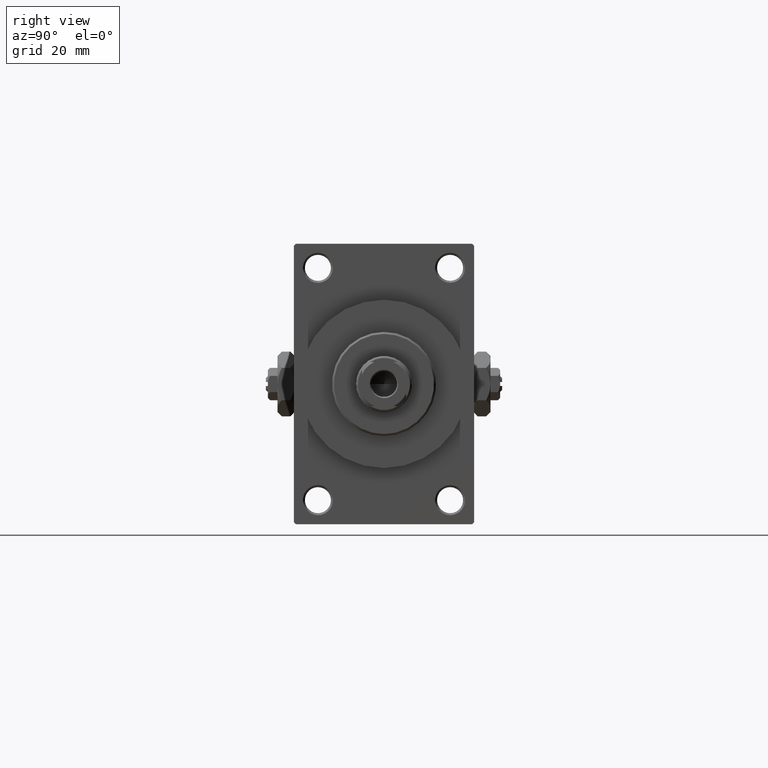
[diagram: clean part render]
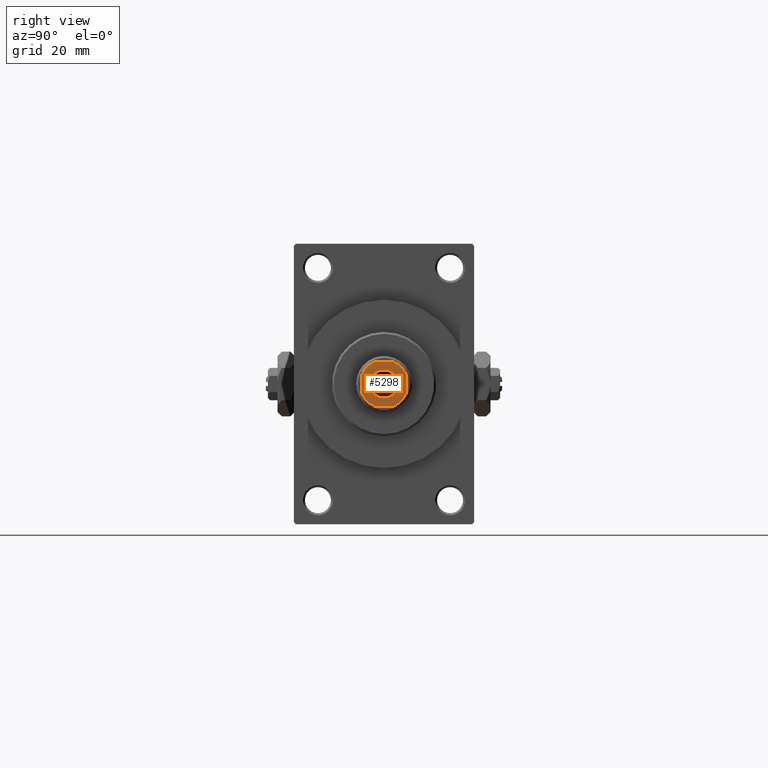
[diagram: same view with one face highlighted and labeled with its STEP entity id]
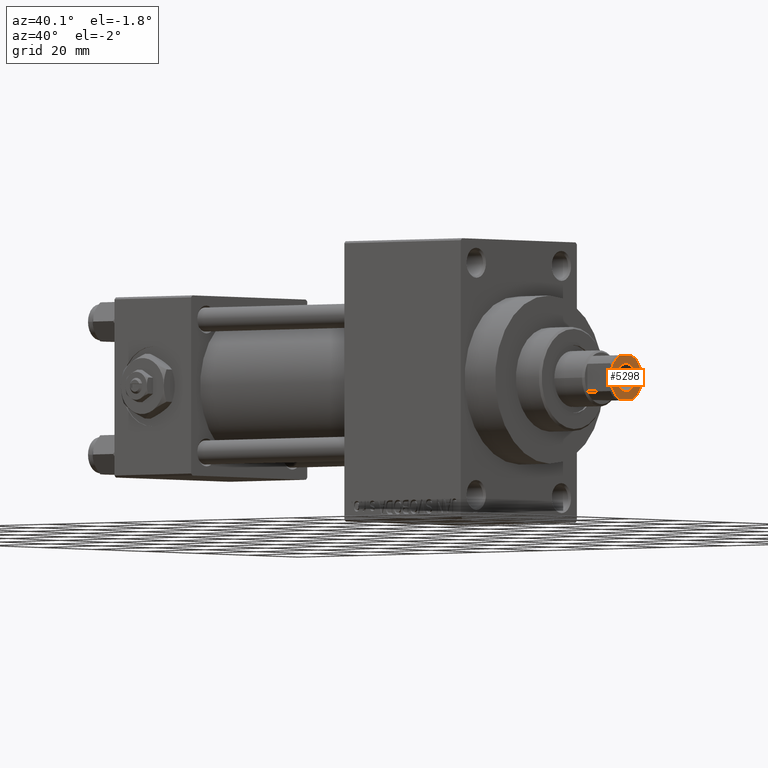
[diagram: same view with one face highlighted and labeled with its STEP entity id]
A machine part, right view. The second image highlights one B-rep face of the part: STEP entity #5298.
A second angle (auxiliary view) of the same face is appended — the face is thin or edge-on in the first view.
In plain terms, the highlighted planar face has unit normal (1, 0, 0).
Its self-contained STEP definition (entity closure, byte-faithful):
#343 = CARTESIAN_POINT ( 'NONE',  ( 0.000000000000000000, 0.000000000000000000, 123.0000000000000000 ) ) ;
#775 = DIRECTION ( 'NONE',  ( -0.000000000000000000, 0.000000000000000000, 1.000000000000000000 ) ) ;
#1095 = VERTEX_POINT ( 'NONE', #37756 ) ;
#1441 = ORIENTED_EDGE ( 'NONE', *, *, #23755, .T. ) ;
#2129 = VERTEX_POINT ( 'NONE', #12747 ) ;
#3520 = DIRECTION ( 'NONE',  ( -1.577021341797097560E-16, 1.000000000000000000, -0.000000000000000000 ) ) ;
#3603 = ORIENTED_EDGE ( 'NONE', *, *, #8269, .T. ) ;
#4006 = VERTEX_POINT ( 'NONE', #31691 ) ;
#4309 = DIRECTION ( 'NONE',  ( 1.577021341797097560E-16, -1.000000000000000000, 0.000000000000000000 ) ) ;
#5298 = ADVANCED_FACE ( 'NONE', ( #33755, #7694 ), #27112, .T. ) ;
#5781 = ORIENTED_EDGE ( 'NONE', *, *, #42510, .T. ) ;
#6614 = VERTEX_POINT ( 'NONE', #19203 ) ;
#7636 = CARTESIAN_POINT ( 'NONE',  ( 0.000000000000000000, 0.000000000000000000, 123.0000000000000000 ) ) ;
#7694 = FACE_OUTER_BOUND ( 'NONE', #13895, .T. ) ;
#8233 = CARTESIAN_POINT ( 'NONE',  ( -5.500000000000000888, 5.500000000000000000, 123.0000000000000000 ) ) ;
#8269 = EDGE_CURVE ( 'NONE', #45870, #6614, #46218, .T. ) ;
#8713 = LINE ( 'NONE', #8233, #10269 ) ;
#8814 = AXIS2_PLACEMENT_3D ( 'NONE', #7636, #15017, #19422 ) ;
#9929 = CARTESIAN_POINT ( 'NONE',  ( 0.000000000000000000, 0.000000000000000000, 123.0000000000000000 ) ) ;
#10269 = VECTOR ( 'NONE', #4309, 1000.000000000000000 ) ;
#10661 = DIRECTION ( 'NONE',  ( 0.000000000000000000, -0.000000000000000000, -1.000000000000000000 ) ) ;
#11706 = AXIS2_PLACEMENT_3D ( 'NONE', #48456, #775, #22643 ) ;
#12155 = EDGE_CURVE ( 'NONE', #13522, #25647, #36045, .T. ) ;
#12233 = ORIENTED_EDGE ( 'NONE', *, *, #12155, .T. ) ;
#12747 = CARTESIAN_POINT ( 'NONE',  ( -5.500000000000000000, 2.397915761656292499, 123.0000000000000000 ) ) ;
#12750 = CIRCLE ( 'NONE', #8814, 5.999999999999992006 ) ;
#13256 = DIRECTION ( 'NONE',  ( 1.000000000000000000, 0.000000000000000000, 0.000000000000000000 ) ) ;
#13522 = VERTEX_POINT ( 'NONE', #18279 ) ;
#13895 = EDGE_LOOP ( 'NONE', ( #35112, #42497, #47526, #32629, #17414, #12233, #1441, #33974 ) ) ;
#14798 = EDGE_CURVE ( 'NONE', #39983, #2129, #37656, .T. ) ;
#15017 = DIRECTION ( 'NONE',  ( -0.000000000000000000, 0.000000000000000000, 1.000000000000000000 ) ) ;
#15330 = DIRECTION ( 'NONE',  ( -0.000000000000000000, 0.000000000000000000, 1.000000000000000000 ) ) ;
#15774 = CIRCLE ( 'NONE', #36141, 3.550000000000011813 ) ;
#16361 = AXIS2_PLACEMENT_3D ( 'NONE', #21604, #40530, #32681 ) ;
#17414 = ORIENTED_EDGE ( 'NONE', *, *, #42044, .T. ) ;
#18279 = CARTESIAN_POINT ( 'NONE',  ( -5.500000000000000000, -2.397915761656382649, 123.0000000000000000 ) ) ;
#18758 = EDGE_CURVE ( 'NONE', #32546, #39983, #25501, .T. ) ;
#18979 = LINE ( 'NONE', #37193, #46600 ) ;
#19203 = CARTESIAN_POINT ( 'NONE',  ( 3.550000000000011813, 0.000000000000000000, 123.0000000000000000 ) ) ;
#19422 = DIRECTION ( 'NONE',  ( 1.000000000000000000, 0.000000000000000000, 0.000000000000000000 ) ) ;
#20697 = CARTESIAN_POINT ( 'NONE',  ( -3.550000000000011813, 4.347496136973118171E-16, 123.0000000000000000 ) ) ;
#21572 = CARTESIAN_POINT ( 'NONE',  ( -2.397915761656291167, 5.500000000000000888, 123.0000000000000000 ) ) ;
#21604 = CARTESIAN_POINT ( 'NONE',  ( 0.000000000000000000, 0.000000000000000000, 123.0000000000000000 ) ) ;
#21868 = AXIS2_PLACEMENT_3D ( 'NONE', #9929, #10661, #44071 ) ;
#22643 = DIRECTION ( 'NONE',  ( 1.000000000000000000, 0.000000000000000000, 0.000000000000000000 ) ) ;
#23177 = DIRECTION ( 'NONE',  ( 1.000000000000000000, 0.000000000000000000, 0.000000000000000000 ) ) ;
#23400 = CIRCLE ( 'NONE', #16361, 6.000000000000008882 ) ;
#23755 = EDGE_CURVE ( 'NONE', #25647, #1095, #24815, .T. ) ;
#24815 = LINE ( 'NONE', #36363, #45022 ) ;
#25501 = LINE ( 'NONE', #27790, #29192 ) ;
#25647 = VERTEX_POINT ( 'NONE', #46320 ) ;
#26463 = CARTESIAN_POINT ( 'NONE',  ( 5.500000000000000000, -2.397915761656381761, 123.0000000000000000 ) ) ;
#27112 = PLANE ( 'NONE',  #30034 ) ;
#27221 = EDGE_LOOP ( 'NONE', ( #5781, #3603 ) ) ;
#27790 = CARTESIAN_POINT ( 'NONE',  ( -5.500000000000000888, 5.500000000000000000, 123.0000000000000000 ) ) ;
#28096 = EDGE_CURVE ( 'NONE', #32244, #4006, #18979, .T. ) ;
#29192 = VECTOR ( 'NONE', #42771, 1000.000000000000000 ) ;
#30034 = AXIS2_PLACEMENT_3D ( 'NONE', #343, #15330, #23177 ) ;
#31691 = CARTESIAN_POINT ( 'NONE',  ( 5.500000000000000000, 2.397915761656341793, 123.0000000000000000 ) ) ;
#32244 = VERTEX_POINT ( 'NONE', #26463 ) ;
#32546 = VERTEX_POINT ( 'NONE', #46591 ) ;
#32629 = ORIENTED_EDGE ( 'NONE', *, *, #14798, .T. ) ;
#32681 = DIRECTION ( 'NONE',  ( 1.000000000000000000, 0.000000000000000000, 0.000000000000000000 ) ) ;
#33755 = FACE_BOUND ( 'NONE', #27221, .T. ) ;
#33974 = ORIENTED_EDGE ( 'NONE', *, *, #37220, .T. ) ;
#35112 = ORIENTED_EDGE ( 'NONE', *, *, #28096, .T. ) ;
#35423 = CARTESIAN_POINT ( 'NONE',  ( 0.000000000000000000, 0.000000000000000000, 123.0000000000000000 ) ) ;
#36045 = CIRCLE ( 'NONE', #11706, 6.000000000000008882 ) ;
#36111 = DIRECTION ( 'NONE',  ( 1.000000000000000000, 0.000000000000000000, 0.000000000000000000 ) ) ;
#36141 = AXIS2_PLACEMENT_3D ( 'NONE', #35423, #42564, #46731 ) ;
#36363 = CARTESIAN_POINT ( 'NONE',  ( -5.499999999999999112, -5.500000000000000000, 123.0000000000000000 ) ) ;
#37193 = CARTESIAN_POINT ( 'NONE',  ( 5.499999999999999112, 5.500000000000000888, 123.0000000000000000 ) ) ;
#37220 = EDGE_CURVE ( 'NONE', #1095, #32244, #23400, .T. ) ;
#37656 = CIRCLE ( 'NONE', #47091, 5.999999999999973355 ) ;
#37756 = CARTESIAN_POINT ( 'NONE',  ( 2.397915761656381761, -5.500000000000000000, 123.0000000000000000 ) ) ;
#39983 = VERTEX_POINT ( 'NONE', #21572 ) ;
#40530 = DIRECTION ( 'NONE',  ( -0.000000000000000000, 0.000000000000000000, 1.000000000000000000 ) ) ;
#42044 = EDGE_CURVE ( 'NONE', #2129, #13522, #8713, .T. ) ;
#42497 = ORIENTED_EDGE ( 'NONE', *, *, #46092, .T. ) ;
#42510 = EDGE_CURVE ( 'NONE', #6614, #45870, #15774, .T. ) ;
#42564 = DIRECTION ( 'NONE',  ( 0.000000000000000000, -0.000000000000000000, -1.000000000000000000 ) ) ;
#42771 = DIRECTION ( 'NONE',  ( -1.000000000000000000, -7.885106708985487801E-17, -0.000000000000000000 ) ) ;
#43494 = DIRECTION ( 'NONE',  ( -0.000000000000000000, 0.000000000000000000, 1.000000000000000000 ) ) ;
#44071 = DIRECTION ( 'NONE',  ( 1.000000000000000000, 0.000000000000000000, 0.000000000000000000 ) ) ;
#45022 = VECTOR ( 'NONE', #36111, 1000.000000000000000 ) ;
#45870 = VERTEX_POINT ( 'NONE', #20697 ) ;
#46092 = EDGE_CURVE ( 'NONE', #4006, #32546, #12750, .T. ) ;
#46218 = CIRCLE ( 'NONE', #21868, 3.550000000000011813 ) ;
#46320 = CARTESIAN_POINT ( 'NONE',  ( -2.397915761656381761, -5.500000000000000000, 123.0000000000000000 ) ) ;
#46591 = CARTESIAN_POINT ( 'NONE',  ( 2.397915761656340017, 5.500000000000000888, 123.0000000000000000 ) ) ;
#46600 = VECTOR ( 'NONE', #3520, 1000.000000000000000 ) ;
#46731 = DIRECTION ( 'NONE',  ( 1.000000000000000000, 0.000000000000000000, 0.000000000000000000 ) ) ;
#46919 = CARTESIAN_POINT ( 'NONE',  ( 0.000000000000000000, 0.000000000000000000, 123.0000000000000000 ) ) ;
#47091 = AXIS2_PLACEMENT_3D ( 'NONE', #46919, #43494, #13256 ) ;
#47526 = ORIENTED_EDGE ( 'NONE', *, *, #18758, .T. ) ;
#48456 = CARTESIAN_POINT ( 'NONE',  ( 0.000000000000000000, 0.000000000000000000, 123.0000000000000000 ) ) ;